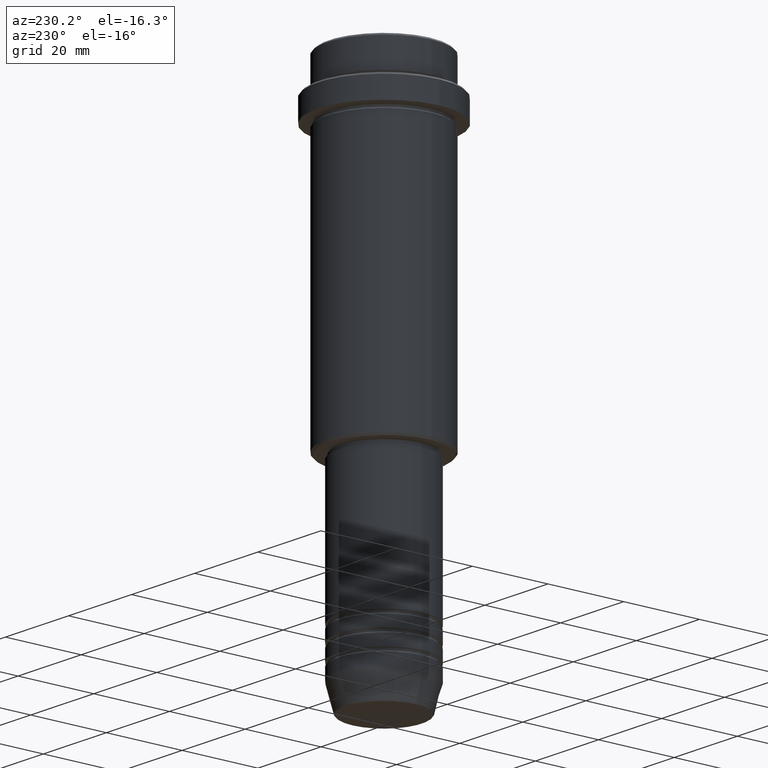
[diagram: clean part render]
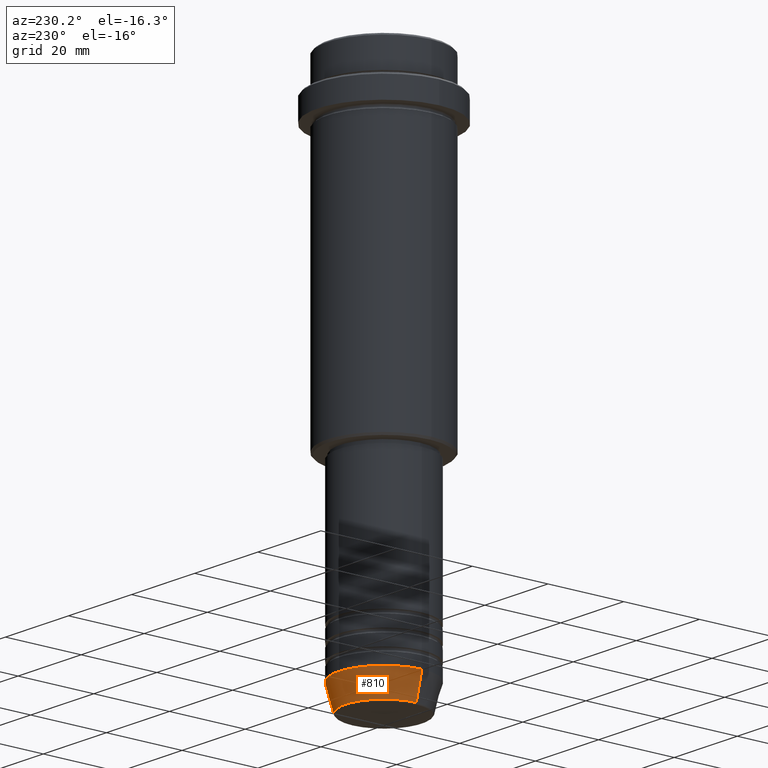
[diagram: same view with one face highlighted and labeled with its STEP entity id]
A machine part, auxiliary view. The second image highlights one B-rep face of the part: STEP entity #810.
In plain terms, the highlighted conical surface has half-angle 15 deg.
Its self-contained STEP definition (entity closure, byte-faithful):
#10 = LINE ( 'NONE', #534, #455 ) ;
#23 = EDGE_CURVE ( 'NONE', #362, #118, #927, .T. ) ;
#91 = CARTESIAN_POINT ( 'NONE',  ( -12.00000000000000000, 1.469576158976823947E-15, -133.0000000000000000 ) ) ;
#118 = VERTEX_POINT ( 'NONE', #1149 ) ;
#130 = AXIS2_PLACEMENT_3D ( 'NONE', #371, #1239, #924 ) ;
#219 = ORIENTED_EDGE ( 'NONE', *, *, #1060, .F. ) ;
#271 = CARTESIAN_POINT ( 'NONE',  ( 0.000000000000000000, 0.000000000000000000, -139.6294095225512706 ) ) ;
#330 = VECTOR ( 'NONE', #559, 1000.000000000000000 ) ;
#362 = VERTEX_POINT ( 'NONE', #579 ) ;
#370 = ORIENTED_EDGE ( 'NONE', *, *, #572, .T. ) ;
#371 = CARTESIAN_POINT ( 'NONE',  ( 0.000000000000000000, 0.000000000000000000, -133.0000000000000000 ) ) ;
#377 = ORIENTED_EDGE ( 'NONE', *, *, #23, .F. ) ;
#387 = CARTESIAN_POINT ( 'NONE',  ( 0.000000000000000000, 0.000000000000000000, -133.0000000000000000 ) ) ;
#402 = AXIS2_PLACEMENT_3D ( 'NONE', #387, #1246, #1255 ) ;
#455 = VECTOR ( 'NONE', #1099, 1000.000000000000000 ) ;
#534 = CARTESIAN_POINT ( 'NONE',  ( 12.00000000000000000, 0.000000000000000000, -133.0000000000000000 ) ) ;
#559 = DIRECTION ( 'NONE',  ( -0.2588190451025213501, 3.169619151431772337E-17, 0.9659258262890680902 ) ) ;
#572 = EDGE_CURVE ( 'NONE', #1276, #118, #1165, .T. ) ;
#579 = CARTESIAN_POINT ( 'NONE',  ( 12.00000000000000000, 0.000000000000000000, -133.0000000000000000 ) ) ;
#633 = CARTESIAN_POINT ( 'NONE',  ( 10.22365507213719127, 0.000000000000000000, -139.6294095225512706 ) ) ;
#649 = ORIENTED_EDGE ( 'NONE', *, *, #1373, .T. ) ;
#739 = DIRECTION ( 'NONE',  ( -0.000000000000000000, -0.000000000000000000, 1.000000000000000000 ) ) ;
#788 = CARTESIAN_POINT ( 'NONE',  ( -10.22365507213719127, 1.360806402472382744E-15, -139.6294095225512706 ) ) ;
#796 = EDGE_LOOP ( 'NONE', ( #649, #370, #377, #219 ) ) ;
#810 = ADVANCED_FACE ( 'NONE', ( #1333 ), #978, .T. ) ;
#834 = DIRECTION ( 'NONE',  ( 1.000000000000000000, 0.000000000000000000, 0.000000000000000000 ) ) ;
#924 = DIRECTION ( 'NONE',  ( 1.000000000000000000, 0.000000000000000000, 0.000000000000000000 ) ) ;
#927 = CIRCLE ( 'NONE', #402, 12.00000000000000000 ) ;
#978 = CONICAL_SURFACE ( 'NONE', #130, 12.00000000000000000, 0.2617993877991500740 ) ;
#979 = CIRCLE ( 'NONE', #1025, 10.22365507213719127 ) ;
#1009 = VERTEX_POINT ( 'NONE', #633 ) ;
#1025 = AXIS2_PLACEMENT_3D ( 'NONE', #271, #739, #834 ) ;
#1060 = EDGE_CURVE ( 'NONE', #1009, #362, #10, .T. ) ;
#1099 = DIRECTION ( 'NONE',  ( 0.2588190451025213501, 0.000000000000000000, 0.9659258262890680902 ) ) ;
#1149 = CARTESIAN_POINT ( 'NONE',  ( -12.00000000000000000, 1.469576158976823947E-15, -133.0000000000000000 ) ) ;
#1165 = LINE ( 'NONE', #91, #330 ) ;
#1239 = DIRECTION ( 'NONE',  ( -0.000000000000000000, -0.000000000000000000, 1.000000000000000000 ) ) ;
#1246 = DIRECTION ( 'NONE',  ( -0.000000000000000000, -0.000000000000000000, 1.000000000000000000 ) ) ;
#1255 = DIRECTION ( 'NONE',  ( 1.000000000000000000, 0.000000000000000000, 0.000000000000000000 ) ) ;
#1276 = VERTEX_POINT ( 'NONE', #788 ) ;
#1333 = FACE_OUTER_BOUND ( 'NONE', #796, .T. ) ;
#1373 = EDGE_CURVE ( 'NONE', #1009, #1276, #979, .T. ) ;